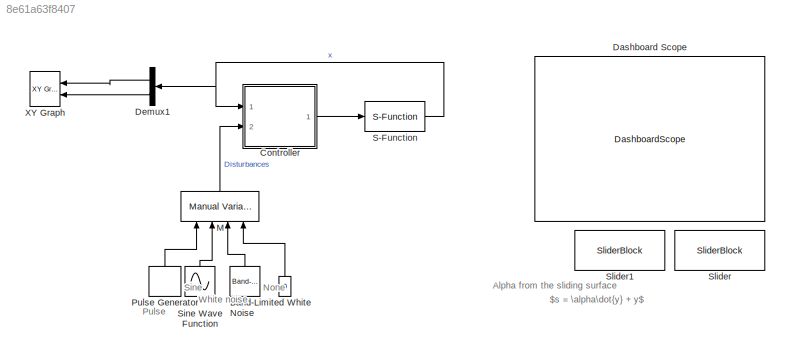
MODEL slx_8e61a63f8407
KIND model
CONFIG AbsTol = auto
CONFIG EnableMultiTasking = off
CONFIG FixedStep = auto
CONFIG MaxStep = auto
CONFIG MinStep = auto
CONFIG RelTol = auto
CONFIG SampleTimeConstraint = Unconstrained
CONFIG SolverName = VariableStepAuto
CONFIG StartTime = 0.0
CONFIG StopTime = 30
BLOCK [Constant]  
  NameLocation = right
  Value = 0
BLOCK [Reference] Band-Limited White Noise  REF=simulink/Sources/Band-Limited
White Noise
  NameLocation = right
  Ports = [0, 1]
  SourceBlock = simulink/Sources/Band-Limited\nWhite Noise
  SourceProductBaseCode = SL
  SourceType = Band-Limited White Noise.
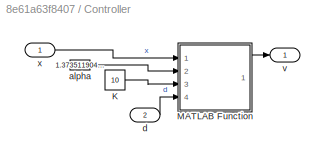
BLOCK [SubSystem] Controller
  Ports = [2, 1]
  RequestExecContextInheritance = off
BLOCK [Constant] Controller/K
  Value = 10
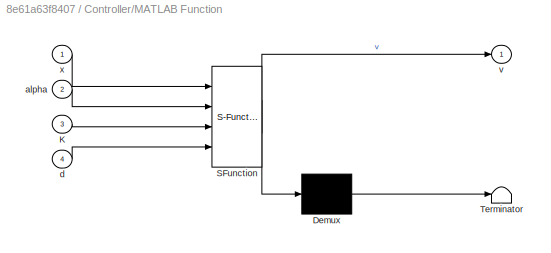
BLOCK [SubSystem] Controller/MATLAB Function
  ErrorFcn = Stateflow.Translate.translate
  PermitHierarchicalResolution = ExplicitOnly
  Ports = [4, 1]
  RequestExecContextInheritance = off
  SFBlockType = MATLAB Function
  TreatAsAtomicUnit = on
BLOCK [Demux] Controller/MATLAB Function/ Demux 
  Outputs = 1
  Ports = [1, 1]
BLOCK [S-Function] Controller/MATLAB Function/ SFunction 
  EnableBusSupport = on
  FunctionName = sf_sfun
  PortCounts = [4 2]
  Ports = [4, 2]
  SFcnIsStateOwnerBlock = off
  SFunctionDeploymentMode = off
  Tag = Stateflow S-Function 1
BLOCK [Terminator] Controller/MATLAB Function/ Terminator 
BLOCK [Inport] Controller/MATLAB Function/K
  Port = 3
BLOCK [Inport] Controller/MATLAB Function/alpha
  Port = 2
BLOCK [Inport] Controller/MATLAB Function/d
  Port = 4
BLOCK [Outport] Controller/MATLAB Function/v
BLOCK [Inport] Controller/MATLAB Function/x
BLOCK [Constant] Controller/alpha
  Value = 1.373511904761905
BLOCK [Inport] Controller/d
  Port = 2
BLOCK [Outport] Controller/v
BLOCK [Inport] Controller/x
BLOCK [DashboardScope] Dashboard Scope
BLOCK [Demux] Demux1
  NameLocation = top
  Outputs = 2
  Ports = [1, 2]
BLOCK [Reference] M  REF=simulink/Signal
Routing/Manual
Variant Source
  NameLocation = right
  Ports = [4, 1]
  SourceBlock = simulink/Signal\nRouting/Manual\nVariant Source
  SourceProductBaseCode = SL
  SourceType = ManualVariantSource
BLOCK [DiscretePulseGenerator] Pulse Generator
  Amplitude = 11
  NameLocation = right
  Period = 1000
  Ports = [0, 1]
  PulseType = Time based
BLOCK [S-Function] S-Function
  EnableBusSupport = off
  FunctionName = plant
  Ports = [1, 1]
  SFcnIsStateOwnerBlock = off
  SFunctionDeploymentMode = off
BLOCK [Sin] Sine Wave Function
  Amplitude = 11
  NameLocation = right
  Ports = [0, 1]
  SampleTime = 0
BLOCK [SliderBlock] Slider
BLOCK [SliderBlock] Slider1
  ScaleMax = 10
BLOCK [Reference] XY Graph  REF=simulink/Sinks/XY Graph
  NameLocation = top
  Ports = [2]
  SourceBlock = simulink/Sinks/XY Graph
  SourceProductBaseCode = SL
  SourceType = XY scope.
ANNOTATION (root): None
ANNOTATION (root): Pulse
ANNOTATION (root): Sine
ANNOTATION (root): White noise
ANNOTATION (root): $s = \alpha\dot{y} + y$
ANNOTATION (root): Alpha from the sliding surface
LINE  :1 -> M:4
LINE Band-Limited White Noise:1 -> M:3
LINE Controller/K:1 -> Controller/MATLAB Function:3
LINE Controller/MATLAB Function:1 -> Controller/v:1
LINE Controller/alpha:1 -> Controller/MATLAB Function:2
LINE Controller/d:1 -> Controller/MATLAB Function:4
LINE Controller/x:1 -> Controller/MATLAB Function:1
LINE Controller:1 -> S-Function:1
LINE Demux1:1 -> XY Graph:1
LINE Demux1:2 -> XY Graph:2
LINE M:1 -> Controller:2
LINE Pulse Generator:1 -> M:1
NET S-Function:1 -> Controller:1, Demux1:1
LINE Sine Wave Function:1 -> M:2
note: NET lines group one-source signal fan-out (src -> all destinations, sorted); 1:1 wires keep LINE
CHART Controller/MATLAB Function states=1 transitions=1
  STATE_LABEL 'eML_blk_kernel()'
  STATE_LABEL 'SCRIPT:\nfunction v = SMC(x, alpha, K, d)\nx1 = x(1);\nx2 = x(2);    \nf_hat = x1 + x2 - 2*x1^3;\ns = x1 + alpha*x2; %Sliding surface \n\nsfun = sign(s); %Classical option\n\n%For a smoother control you could use\n% sfun = tanh(s)\n\n%or, for example,\n\n% epsilon = 0.001; %%With epsilon going to 0, sfunc (below) would be = to sign(s)\n%sfun = s/(abs(s) + epsilon) %%Saturaded  \n\nv = -(x2/alpha - f_hat + K*sfun/a...<+11ch>'
CHART  states=0 transitions=0
